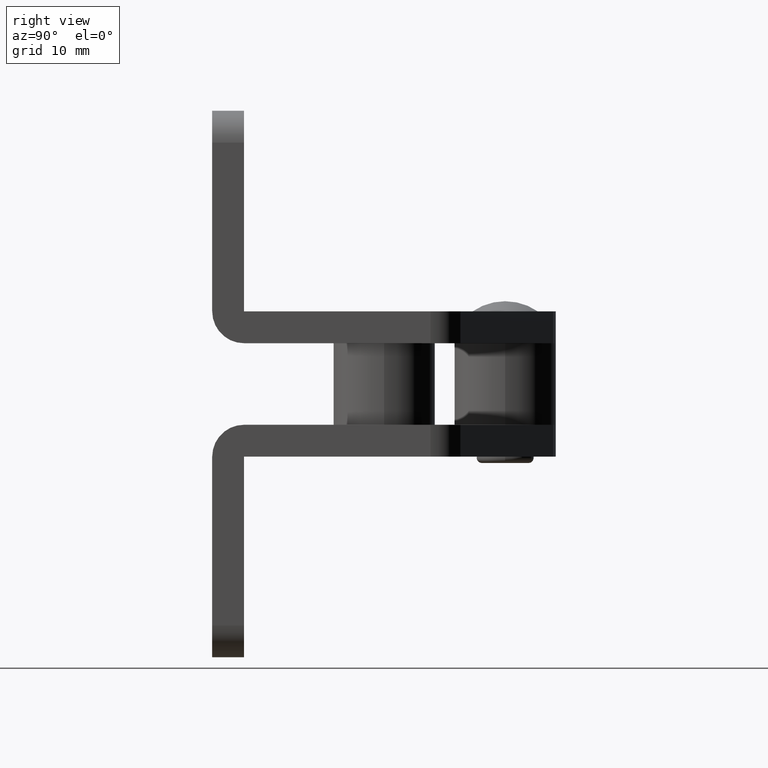
[diagram: clean part render]
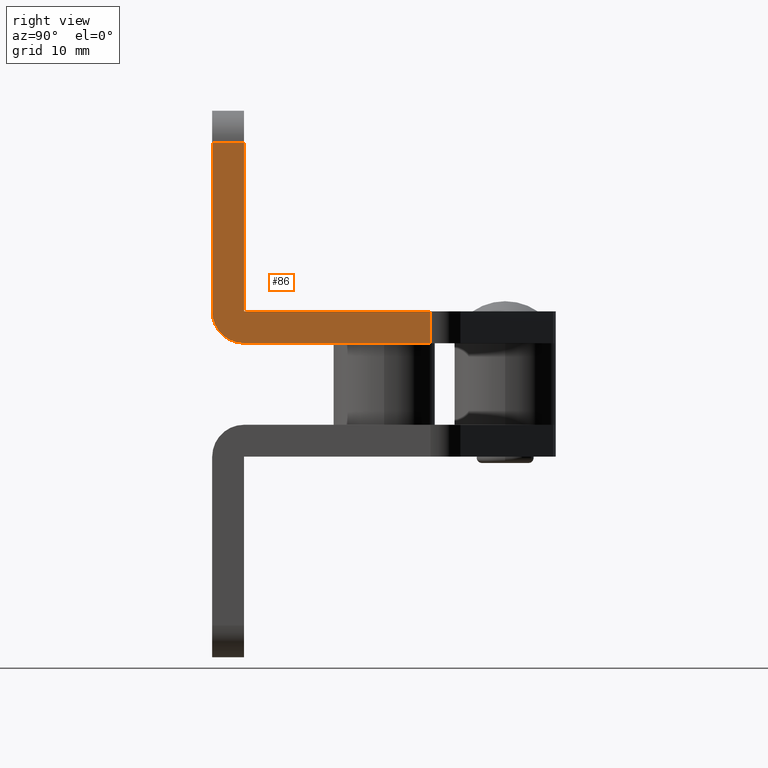
[diagram: same view with one face highlighted and labeled with its STEP entity id]
A machine part, right view. The second image highlights one B-rep face of the part: STEP entity #86.
In plain terms, the highlighted planar face has unit normal (1, 0, 0).
Its self-contained STEP definition (entity closure, byte-faithful):
#7 = VERTEX_POINT ( 'NONE', #329 ) ;
#15 = CARTESIAN_POINT ( 'NONE',  ( 54.00000000000000000, 4.999999999999948500, 36.49999999999997200 ) ) ;
#16 = CARTESIAN_POINT ( 'NONE',  ( 53.99999999999934600, 4.999999999999948500, 31.50000000000016700 ) ) ;
#39 = AXIS2_PLACEMENT_3D ( 'NONE', #1178, #941, #1235 ) ;
#54 = VERTEX_POINT ( 'NONE', #279 ) ;
#86 = ADVANCED_FACE ( 'NONE', ( #515 ), #1229, .T. ) ;
#89 = ORIENTED_EDGE ( 'NONE', *, *, #1389, .T. ) ;
#97 = DIRECTION ( 'NONE',  ( 1.000000000000000000, 0.0000000000000000000, 0.0000000000000000000 ) ) ;
#114 = ORIENTED_EDGE ( 'NONE', *, *, #1392, .T. ) ;
#130 = DIRECTION ( 'NONE',  ( 0.0000000000000000000, 1.000000000000000000, 0.0000000000000000000 ) ) ;
#164 = VERTEX_POINT ( 'NONE', #16 ) ;
#169 = CARTESIAN_POINT ( 'NONE',  ( 54.00000000000000000, 4.999999999999948500, 4.999999999999948500 ) ) ;
#279 = CARTESIAN_POINT ( 'NONE',  ( 54.00000000000024200, 34.27000000000000300, 4.999999999999948500 ) ) ;
#329 = CARTESIAN_POINT ( 'NONE',  ( 54.00000000000024200, 34.27000000000000300, -1.387778780781445700E-014 ) ) ;
#335 = ORIENTED_EDGE ( 'NONE', *, *, #588, .T. ) ;
#515 = FACE_OUTER_BOUND ( 'NONE', #780, .T. ) ;
#529 = CARTESIAN_POINT ( 'NONE',  ( 53.99999999999934600, -5.551115123125782700E-014, 31.50000000000016700 ) ) ;
#550 = VECTOR ( 'NONE', #850, 1000.000000000000000 ) ;
#588 = EDGE_CURVE ( 'NONE', #54, #1765, #766, .T. ) ;
#645 = CIRCLE ( 'NONE', #39, 4.999999999999976900 ) ;
#687 = ORIENTED_EDGE ( 'NONE', *, *, #1222, .T. ) ;
#707 = LINE ( 'NONE', #1704, #1872 ) ;
#753 = ORIENTED_EDGE ( 'NONE', *, *, #1085, .F. ) ;
#766 = LINE ( 'NONE', #1611, #846 ) ;
#780 = EDGE_LOOP ( 'NONE', ( #335, #687, #753, #89, #1661, #114, #1173 ) ) ;
#785 = EDGE_CURVE ( 'NONE', #791, #1548, #645, .T. ) ;
#791 = VERTEX_POINT ( 'NONE', #1136 ) ;
#816 = DIRECTION ( 'NONE',  ( -0.0000000000000000000, -0.0000000000000000000, 1.000000000000000000 ) ) ;
#846 = VECTOR ( 'NONE', #1428, 1000.000000000000000 ) ;
#850 = DIRECTION ( 'NONE',  ( -0.0000000000000000000, -0.0000000000000000000, 1.000000000000000000 ) ) ;
#859 = VERTEX_POINT ( 'NONE', #529 ) ;
#865 = CARTESIAN_POINT ( 'NONE',  ( 53.99999999999934600, -49.00000000000005000, 31.50000000000016700 ) ) ;
#941 = DIRECTION ( 'NONE',  ( 1.000000000000000000, 0.0000000000000000000, 0.0000000000000000000 ) ) ;
#983 = VECTOR ( 'NONE', #1456, 1000.000000000000000 ) ;
#1040 = CARTESIAN_POINT ( 'NONE',  ( 54.00000000000000000, 4.999999999999948500, -2.775557561562891400E-014 ) ) ;
#1085 = EDGE_CURVE ( 'NONE', #859, #164, #1878, .T. ) ;
#1107 = AXIS2_PLACEMENT_3D ( 'NONE', #169, #97, #1701 ) ;
#1136 = CARTESIAN_POINT ( 'NONE',  ( 54.00000000000000000, -5.616167253474913000E-014, 5.000000000000004400 ) ) ;
#1157 = CARTESIAN_POINT ( 'NONE',  ( 54.00000000000000000, 53.99999999999987900, 0.0000000000000000000 ) ) ;
#1173 = ORIENTED_EDGE ( 'NONE', *, *, #1308, .T. ) ;
#1178 = CARTESIAN_POINT ( 'NONE',  ( 54.00000000000000000, 4.999999999999948500, 4.999999999999948500 ) ) ;
#1222 = EDGE_CURVE ( 'NONE', #1765, #164, #1281, .T. ) ;
#1229 = PLANE ( 'NONE',  #1107 ) ;
#1235 = DIRECTION ( 'NONE',  ( 0.0000000000000000000, 0.0000000000000000000, -1.000000000000000000 ) ) ;
#1281 = LINE ( 'NONE', #15, #550 ) ;
#1308 = EDGE_CURVE ( 'NONE', #7, #54, #707, .T. ) ;
#1389 = EDGE_CURVE ( 'NONE', #859, #791, #1749, .T. ) ;
#1392 = EDGE_CURVE ( 'NONE', #1548, #7, #1493, .T. ) ;
#1428 = DIRECTION ( 'NONE',  ( 0.0000000000000000000, -1.000000000000000000, 0.0000000000000000000 ) ) ;
#1442 = VECTOR ( 'NONE', #1603, 1000.000000000000000 ) ;
#1456 = DIRECTION ( 'NONE',  ( 0.0000000000000000000, 0.0000000000000000000, -1.000000000000000000 ) ) ;
#1493 = LINE ( 'NONE', #1157, #1442 ) ;
#1548 = VERTEX_POINT ( 'NONE', #1040 ) ;
#1598 = CARTESIAN_POINT ( 'NONE',  ( 54.00000000000000000, -5.616167253474913000E-014, 36.50000000000002800 ) ) ;
#1603 = DIRECTION ( 'NONE',  ( 0.0000000000000000000, 1.000000000000000000, 0.0000000000000000000 ) ) ;
#1611 = CARTESIAN_POINT ( 'NONE',  ( 54.00000000000000000, 53.99999999999987900, 4.999999999999948500 ) ) ;
#1661 = ORIENTED_EDGE ( 'NONE', *, *, #785, .T. ) ;
#1701 = DIRECTION ( 'NONE',  ( 0.0000000000000000000, 0.0000000000000000000, -1.000000000000000000 ) ) ;
#1704 = CARTESIAN_POINT ( 'NONE',  ( 54.00000000000012100, 34.27000000000000300, -49.00000000000005000 ) ) ;
#1749 = LINE ( 'NONE', #1598, #983 ) ;
#1765 = VERTEX_POINT ( 'NONE', #1884 ) ;
#1860 = VECTOR ( 'NONE', #130, 1000.000000000000000 ) ;
#1872 = VECTOR ( 'NONE', #816, 1000.000000000000000 ) ;
#1878 = LINE ( 'NONE', #865, #1860 ) ;
#1884 = CARTESIAN_POINT ( 'NONE',  ( 54.00000000000000000, 4.999999999999948500, 4.999999999999948500 ) ) ;